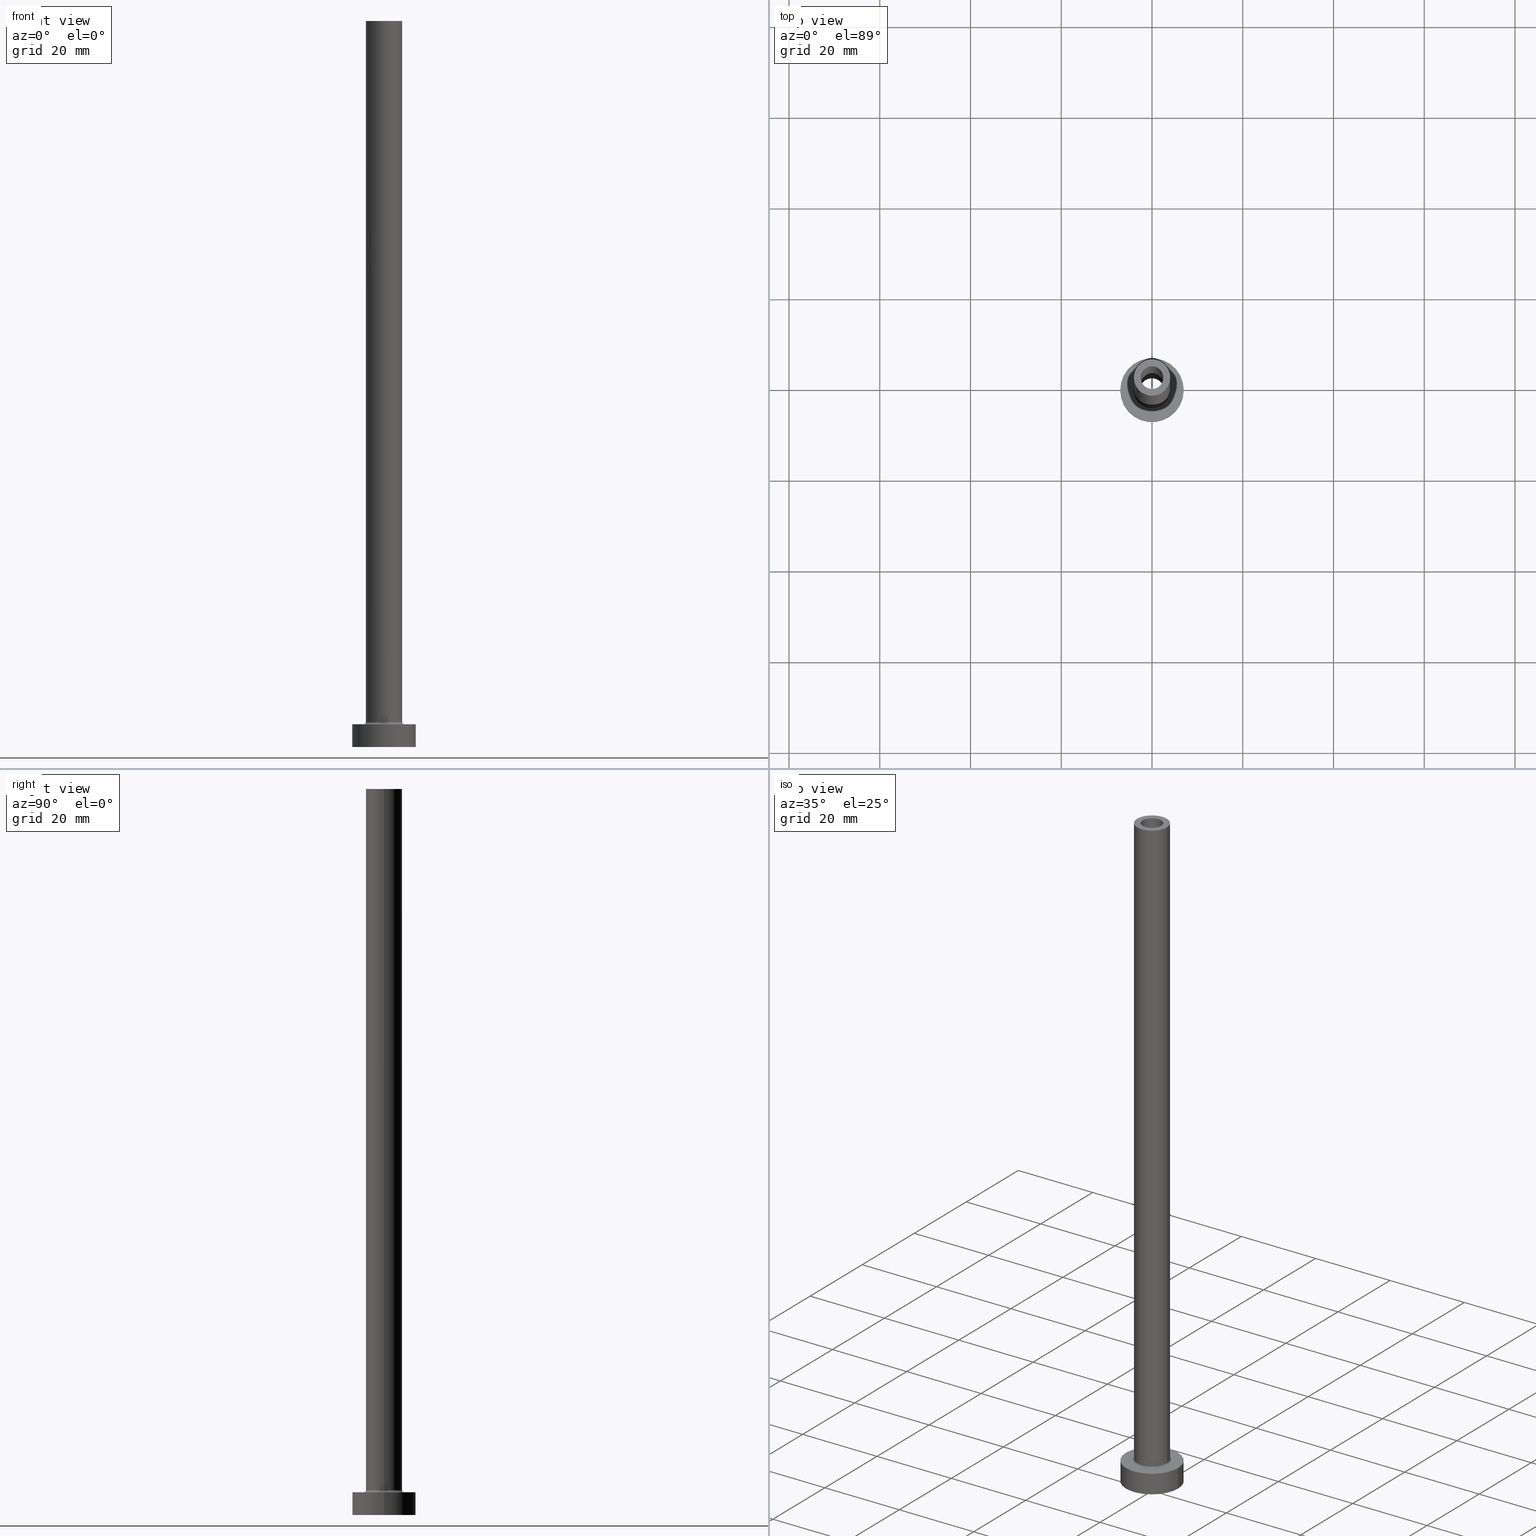
[diagram: canonical four-view strip — front | top / right | iso, engineering-drawing reading convention]
A machine part, canonical four-view strip (front | top / right | iso — engineering-drawing reading convention). The complete STEP part file that produces these views, byte-faithful:
ISO-10303-21;
HEADER;
FILE_DESCRIPTION (( 'STEP AP203' ),
    '1' );
FILE_NAME ('1b4b.STEP',
    '2023-02-13T10:13:30',
    ( '' ),
    ( '' ),
    'SwSTEP 2.0',
    'SolidWorks 2019',
    '' );
FILE_SCHEMA (( 'CONFIG_CONTROL_DESIGN' ));
ENDSEC;

DATA;
#1 = EDGE_CURVE ( 'NONE', #191, #346, #309, .T. ) ;
#2 = DIRECTION ( 'NONE',  ( 0.000000000000000000, 0.000000000000000000, -1.000000000000000000 ) ) ;
#3 = COORDINATED_UNIVERSAL_TIME_OFFSET ( 1, 0, .AHEAD. ) ;
#4 = LINE ( 'NONE', #186, #271 ) ;
#5 = AXIS2_PLACEMENT_3D ( 'NONE', #44, #324, #288 ) ;
#6 = PERSON_AND_ORGANIZATION_ROLE ( 'design_supplier' ) ;
#7 = AXIS2_PLACEMENT_3D ( 'NONE', #210, #388, #62 ) ;
#8 = CARTESIAN_POINT ( 'NONE',  ( 2.500000000000000000, 3.061616997868382648E-16, 115.0000000000000000 ) ) ;
#9 = CARTESIAN_POINT ( 'NONE',  ( 4.500000000000000888, 0.000000000000000000, 5.000000000000002665 ) ) ;
#10 = ADVANCED_FACE ( 'NONE', ( #461 ), #371, .F. ) ;
#11 = DIRECTION ( 'NONE',  ( 1.000000000000000000, 0.000000000000000000, 0.000000000000000000 ) ) ;
#12 = FACE_BOUND ( 'NONE', #390, .T. ) ;
#13 = LINE ( 'NONE', #303, #117 ) ;
#14 = ORIENTED_EDGE ( 'NONE', *, *, #304, .T. ) ;
#15 = PLANE ( 'NONE',  #19 ) ;
#16 = VERTEX_POINT ( 'NONE', #141 ) ;
#17 = DIRECTION ( 'NONE',  ( -0.000000000000000000, -0.000000000000000000, -1.000000000000000000 ) ) ;
#18 = AXIS2_PLACEMENT_3D ( 'NONE', #294, #399, #75 ) ;
#19 = AXIS2_PLACEMENT_3D ( 'NONE', #437, #232, #83 ) ;
#20 = EDGE_CURVE ( 'NONE', #95, #191, #4, .T. ) ;
#21 = CARTESIAN_POINT ( 'NONE',  ( 7.000000000000000000, 8.572527594031473190E-16, 0.000000000000000000 ) ) ;
#22 = ORIENTED_EDGE ( 'NONE', *, *, #23, .F. ) ;
#23 = EDGE_CURVE ( 'NONE', #453, #241, #130, .T. ) ;
#24 = ORIENTED_EDGE ( 'NONE', *, *, #304, .F. ) ;
#25 = ORIENTED_EDGE ( 'NONE', *, *, #1, .T. ) ;
#26 = DIRECTION ( 'NONE',  ( 0.000000000000000000, 0.000000000000000000, 1.000000000000000000 ) ) ;
#27 = ORIENTED_EDGE ( 'NONE', *, *, #403, .T. ) ;
#28 =( NAMED_UNIT ( * ) PLANE_ANGLE_UNIT ( ) SI_UNIT ( $, .RADIAN. ) );
#29 = ORIENTED_EDGE ( 'NONE', *, *, #30, .T. ) ;
#30 = EDGE_CURVE ( 'NONE', #387, #453, #227, .T. ) ;
#31 = CYLINDRICAL_SURFACE ( 'NONE', #248, 2.649999999999999911 ) ;
#32 = ORIENTED_EDGE ( 'NONE', *, *, #317, .F. ) ;
#33 = AXIS2_PLACEMENT_3D ( 'NONE', #47, #82, #264 ) ;
#34 = PRODUCT_DEFINITION_FORMATION_WITH_SPECIFIED_SOURCE ( 'LIBOVOLN�', '', #116, .NOT_KNOWN. ) ;
#35 = MECHANICAL_CONTEXT ( 'NONE', #209, 'mechanical' ) ;
#36 = FACE_OUTER_BOUND ( 'NONE', #233, .T. ) ;
#37 = PERSON_AND_ORGANIZATION ( #238, #404 ) ;
#38 = PRODUCT_RELATED_PRODUCT_CATEGORY ( 'detail', '', ( #116 ) ) ;
#39 = DIRECTION ( 'NONE',  ( 0.000000000000000000, 0.000000000000000000, -1.000000000000000000 ) ) ;
#40 = CARTESIAN_POINT ( 'NONE',  ( 0.000000000000000000, 0.000000000000000000, 115.0000000000000000 ) ) ;
#41 = VECTOR ( 'NONE', #2, 1000.000000000000000 ) ;
#42 = APPROVAL_STATUS ( 'not_yet_approved' ) ;
#43 = CIRCLE ( 'NONE', #372, 4.500000000000000888 ) ;
#44 = CARTESIAN_POINT ( 'NONE',  ( 0.000000000000000000, 0.000000000000000000, 5.000000000000000000 ) ) ;
#45 = DATE_AND_TIME ( #74, #380 ) ;
#46 = DIRECTION ( 'NONE',  ( 1.000000000000000000, 0.000000000000000000, 0.000000000000000000 ) ) ;
#47 = CARTESIAN_POINT ( 'NONE',  ( 0.000000000000000000, 0.000000000000000000, 122.4953318805774103 ) ) ;
#48 = AXIS2_PLACEMENT_3D ( 'NONE', #344, #234, #411 ) ;
#49 = CARTESIAN_POINT ( 'NONE',  ( 0.000000000000000000, 0.000000000000000000, 5.000000000000000000 ) ) ;
#50 = CC_DESIGN_APPROVAL ( #184, ( #34 ) ) ;
#51 = EDGE_CURVE ( 'NONE', #311, #95, #167, .T. ) ;
#52 = CYLINDRICAL_SURFACE ( 'NONE', #422, 4.000000000000000000 ) ;
#53 = ORIENTED_EDGE ( 'NONE', *, *, #290, .T. ) ;
#54 = CARTESIAN_POINT ( 'NONE',  ( -2.649999999999999911, 0.000000000000000000, 115.0000000000000000 ) ) ;
#55 = EDGE_CURVE ( 'NONE', #201, #203, #364, .T. ) ;
#56 = CARTESIAN_POINT ( 'NONE',  ( -2.649999999999999911, 0.000000000000000000, 0.000000000000000000 ) ) ;
#57 = ORIENTED_EDGE ( 'NONE', *, *, #121, .T. ) ;
#58 = AXIS2_PLACEMENT_3D ( 'NONE', #138, #318, #274 ) ;
#59 = LOCAL_TIME ( 11, 13, 30.00000000000000000, #287 ) ;
#60 = CARTESIAN_POINT ( 'NONE',  ( 0.000000000000000000, 0.000000000000000000, 5.000000000000000000 ) ) ;
#61 = VERTEX_POINT ( 'NONE', #114 ) ;
#62 = DIRECTION ( 'NONE',  ( 1.000000000000000000, 0.000000000000000000, 0.000000000000000000 ) ) ;
#63 = VERTEX_POINT ( 'NONE', #9 ) ;
#64 = FACE_OUTER_BOUND ( 'NONE', #243, .T. ) ;
#65 = EDGE_LOOP ( 'NONE', ( #314, #29, #132, #301 ) ) ;
#66 = ORIENTED_EDGE ( 'NONE', *, *, #245, .T. ) ;
#67 = DIRECTION ( 'NONE',  ( 0.000000000000000000, 0.000000000000000000, -1.000000000000000000 ) ) ;
#68 = ORIENTED_EDGE ( 'NONE', *, *, #378, .T. ) ;
#69 = PERSON_AND_ORGANIZATION ( #238, #404 ) ;
#70 = CARTESIAN_POINT ( 'NONE',  ( -4.000000000000000000, 0.000000000000000000, 5.500000000000005329 ) ) ;
#71 = AXIS2_PLACEMENT_3D ( 'NONE', #77, #435, #224 ) ;
#72 = COORDINATED_UNIVERSAL_TIME_OFFSET ( 1, 0, .AHEAD. ) ;
#73 = CYLINDRICAL_SURFACE ( 'NONE', #198, 2.500000000000000000 ) ;
#74 = CALENDAR_DATE ( 2023, 13, 2 ) ;
#75 = DIRECTION ( 'NONE',  ( -1.000000000000000000, 0.000000000000000000, 0.000000000000000000 ) ) ;
#76 = APPROVAL_STATUS ( 'not_yet_approved' ) ;
#77 = CARTESIAN_POINT ( 'NONE',  ( 0.000000000000000000, 0.000000000000000000, 160.0000000000000000 ) ) ;
#78 = AXIS2_PLACEMENT_3D ( 'NONE', #40, #183, #426 ) ;
#79 = APPROVAL_PERSON_ORGANIZATION ( #255, #430, #113 ) ;
#80 = CARTESIAN_POINT ( 'NONE',  ( -4.000000000000000000, 0.000000000000000000, 160.0000000000000000 ) ) ;
#81 = CC_DESIGN_PERSON_AND_ORGANIZATION_ASSIGNMENT ( #180, #291, ( #259 ) ) ;
#82 = DIRECTION ( 'NONE',  ( 0.000000000000000000, 0.000000000000000000, -1.000000000000000000 ) ) ;
#83 = DIRECTION ( 'NONE',  ( 1.000000000000000000, 0.000000000000000000, -0.000000000000000000 ) ) ;
#84 = CARTESIAN_POINT ( 'NONE',  ( 0.000000000000000000, 0.000000000000000000, 160.0000000000000000 ) ) ;
#85 = ORIENTED_EDGE ( 'NONE', *, *, #293, .T. ) ;
#86 = DIRECTION ( 'NONE',  ( 1.000000000000000000, 0.000000000000000000, 0.000000000000000000 ) ) ;
#87 = ORIENTED_EDGE ( 'NONE', *, *, #448, .F. ) ;
#88 = DIRECTION ( 'NONE',  ( 1.000000000000000000, 0.000000000000000000, 0.000000000000000000 ) ) ;
#89 = CC_DESIGN_DATE_AND_TIME_ASSIGNMENT ( #45, #398, ( #416 ) ) ;
#90 = EDGE_LOOP ( 'NONE', ( #457, #250, #171, #423 ) ) ;
#91 = CARTESIAN_POINT ( 'NONE',  ( 0.000000000000000000, 0.000000000000000000, 5.000000000000000000 ) ) ;
#92 = ORIENTED_EDGE ( 'NONE', *, *, #148, .F. ) ;
#93 = AXIS2_PLACEMENT_3D ( 'NONE', #91, #454, #206 ) ;
#94 = DIRECTION ( 'NONE',  ( 0.000000000000000000, 0.000000000000000000, -1.000000000000000000 ) ) ;
#95 = VERTEX_POINT ( 'NONE', #80 ) ;
#96 = FACE_OUTER_BOUND ( 'NONE', #90, .T. ) ;
#97 = ORIENTED_EDGE ( 'NONE', *, *, #51, .T. ) ;
#98 = APPROVAL ( #178, 'NEUR�EN�' ) ;
#99 = DIRECTION ( 'NONE',  ( -0.000000000000000000, -0.000000000000000000, -1.000000000000000000 ) ) ;
#100 = VERTEX_POINT ( 'NONE', #8 ) ;
#101 = AXIS2_PLACEMENT_3D ( 'NONE', #258, #396, #285 ) ;
#102 = AXIS2_PLACEMENT_3D ( 'NONE', #315, #351, #128 ) ;
#103 = ORIENTED_EDGE ( 'NONE', *, *, #163, .T. ) ;
#104 = DESIGN_CONTEXT ( 'detailed design', #338, 'design' ) ;
#105 = APPROVAL_DATE_TIME ( #362, #430 ) ;
#106 = EDGE_LOOP ( 'NONE', ( #455, #66, #126, #424 ) ) ;
#107 = EDGE_CURVE ( 'NONE', #316, #387, #427, .T. ) ;
#108 = APPLICATION_PROTOCOL_DEFINITION ( 'international standard', 'config_control_design', 1994, #338 ) ;
#109 = DIRECTION ( 'NONE',  ( 0.000000000000000000, 0.000000000000000000, 1.000000000000000000 ) ) ;
#110 = CIRCLE ( 'NONE', #101, 2.500000000000000000 ) ;
#111 = AXIS2_PLACEMENT_3D ( 'NONE', #202, #270, #137 ) ;
#112 = CARTESIAN_POINT ( 'NONE',  ( 0.000000000000000000, 0.000000000000000000, 5.500000000000005329 ) ) ;
#113 = APPROVAL_ROLE ( '' ) ;
#114 = CARTESIAN_POINT ( 'NONE',  ( -2.500000000000000000, 0.000000000000000000, 115.0000000000000000 ) ) ;
#115 = DIRECTION ( 'NONE',  ( 0.000000000000000000, 0.000000000000000000, 1.000000000000000000 ) ) ;
#116 = PRODUCT ( '1b4b', '1b4b', '', ( #35 ) ) ;
#117 = VECTOR ( 'NONE', #409, 1000.000000000000000 ) ;
#118 = AXIS2_PLACEMENT_3D ( 'NONE', #212, #277, #67 ) ;
#119 = CARTESIAN_POINT ( 'NONE',  ( -7.000000000000000000, 0.000000000000000000, 5.000000000000000000 ) ) ;
#120 = CARTESIAN_POINT ( 'NONE',  ( 2.500000000000000000, 3.061616997868382648E-16, 160.0000000000000000 ) ) ;
#121 = EDGE_CURVE ( 'NONE', #201, #306, #429, .T. ) ;
#122 = LINE ( 'NONE', #441, #192 ) ;
#123 = CARTESIAN_POINT ( 'NONE',  ( -7.000000000000000000, 0.000000000000000000, 0.000000000000000000 ) ) ;
#124 = EDGE_LOOP ( 'NONE', ( #172, #415, #213, #446 ) ) ;
#125 = CARTESIAN_POINT ( 'NONE',  ( 4.000000000000000000, 4.898587196589412829E-16, 160.0000000000000000 ) ) ;
#126 = ORIENTED_EDGE ( 'NONE', *, *, #440, .T. ) ;
#127 = EDGE_CURVE ( 'NONE', #191, #337, #160, .T. ) ;
#128 = DIRECTION ( 'NONE',  ( 1.000000000000000000, 0.000000000000000000, 0.000000000000000000 ) ) ;
#129 = CARTESIAN_POINT ( 'NONE',  ( 2.649999999999999911, 3.245314017740485469E-16, 115.0000000000000000 ) ) ;
#130 = CIRCLE ( 'NONE', #379, 2.649999999999999911 ) ;
#131 = EDGE_LOOP ( 'NONE', ( #211, #25, #195, #450 ) ) ;
#132 = ORIENTED_EDGE ( 'NONE', *, *, #23, .T. ) ;
#133 = ADVANCED_FACE ( 'NONE', ( #397 ), #434, .F. ) ;
#134 = DIRECTION ( 'NONE',  ( 1.000000000000000000, 0.000000000000000000, -0.000000000000000000 ) ) ;
#135 = ORIENTED_EDGE ( 'NONE', *, *, #448, .T. ) ;
#136 = ADVANCED_FACE ( 'NONE', ( #260, #36 ), #256, .T. ) ;
#137 = DIRECTION ( 'NONE',  ( -1.000000000000000000, 0.000000000000000000, 0.000000000000000000 ) ) ;
#138 = CARTESIAN_POINT ( 'NONE',  ( -4.500000000000000888, 5.510910596163089556E-16, 5.500000000000005329 ) ) ;
#139 = AXIS2_PLACEMENT_3D ( 'NONE', #438, #269, #407 ) ;
#140 = ORIENTED_EDGE ( 'NONE', *, *, #444, .T. ) ;
#141 = CARTESIAN_POINT ( 'NONE',  ( -2.500000000000000000, 0.000000000000000000, 160.0000000000000000 ) ) ;
#142 = APPROVAL_ROLE ( '' ) ;
#143 = DIRECTION ( 'NONE',  ( 1.000000000000000000, 0.000000000000000000, 0.000000000000000000 ) ) ;
#144 = AXIS2_PLACEMENT_3D ( 'NONE', #359, #292, #357 ) ;
#145 = CC_DESIGN_SECURITY_CLASSIFICATION ( #416, ( #34 ) ) ;
#146 = DATE_AND_TIME ( #360, #59 ) ;
#147 = DIRECTION ( 'NONE',  ( 0.000000000000000000, 0.000000000000000000, 1.000000000000000000 ) ) ;
#148 = EDGE_CURVE ( 'NONE', #61, #100, #110, .T. ) ;
#149 = DATE_AND_TIME ( #400, #343 ) ;
#150 = DIRECTION ( 'NONE',  ( 1.000000000000000000, 0.000000000000000000, 0.000000000000000000 ) ) ;
#151 = ADVANCED_BREP_SHAPE_REPRESENTATION ( '1b4b', ( #217, #281 ), #162 ) ;
#152 = EDGE_CURVE ( 'NONE', #241, #453, #231, .T. ) ;
#153 = CARTESIAN_POINT ( 'NONE',  ( 0.000000000000000000, 0.000000000000000000, 115.0000000000000000 ) ) ;
#154 = CIRCLE ( 'NONE', #118, 0.5000000000000004441 ) ;
#155 = CARTESIAN_POINT ( 'NONE',  ( -4.500000000000000888, 5.510910596163088569E-16, 5.000000000000002665 ) ) ;
#156 = CARTESIAN_POINT ( 'NONE',  ( 0.000000000000000000, 0.000000000000000000, 160.0000000000000000 ) ) ;
#157 = ORIENTED_EDGE ( 'NONE', *, *, #152, .F. ) ;
#158 = FACE_OUTER_BOUND ( 'NONE', #65, .T. ) ;
#159 = ORIENTED_EDGE ( 'NONE', *, *, #283, .T. ) ;
#160 = CIRCLE ( 'NONE', #144, 4.000000000000000000 ) ;
#161 = DIRECTION ( 'NONE',  ( -0.000000000000000000, -0.000000000000000000, -1.000000000000000000 ) ) ;
#162 =( GEOMETRIC_REPRESENTATION_CONTEXT ( 3 ) GLOBAL_UNCERTAINTY_ASSIGNED_CONTEXT ( ( #215 ) ) GLOBAL_UNIT_ASSIGNED_CONTEXT ( ( #313, #28, #273 ) ) REPRESENTATION_CONTEXT ( 'NONE', 'WORKASPACE' ) );
#163 = EDGE_CURVE ( 'NONE', #100, #61, #279, .T. ) ;
#164 = CARTESIAN_POINT ( 'NONE',  ( -7.000000000000000000, 0.000000000000000000, 5.000000000000000000 ) ) ;
#165 = ORIENTED_EDGE ( 'NONE', *, *, #383, .F. ) ;
#166 = DIRECTION ( 'NONE',  ( 1.000000000000000000, 0.000000000000000000, 0.000000000000000000 ) ) ;
#167 = CIRCLE ( 'NONE', #71, 4.000000000000000000 ) ;
#168 = ORIENTED_EDGE ( 'NONE', *, *, #148, .T. ) ;
#169 = AXIS2_PLACEMENT_3D ( 'NONE', #456, #26, #134 ) ;
#170 = DIRECTION ( 'NONE',  ( -1.000000000000000000, 0.000000000000000000, 0.000000000000000000 ) ) ;
#171 = ORIENTED_EDGE ( 'NONE', *, *, #20, .T. ) ;
#172 = ORIENTED_EDGE ( 'NONE', *, *, #121, .F. ) ;
#173 = CC_DESIGN_PERSON_AND_ORGANIZATION_ASSIGNMENT ( #37, #358, ( #34 ) ) ;
#174 = CARTESIAN_POINT ( 'NONE',  ( 0.000000000000000000, 0.000000000000000000, 122.4953318805774103 ) ) ;
#175 = EDGE_LOOP ( 'NONE', ( #340, #354 ) ) ;
#176 = AXIS2_PLACEMENT_3D ( 'NONE', #401, #179, #432 ) ;
#177 = CC_DESIGN_APPROVAL ( #98, ( #416 ) ) ;
#178 = APPROVAL_STATUS ( 'not_yet_approved' ) ;
#179 = DIRECTION ( 'NONE',  ( 0.000000000000000000, 0.000000000000000000, 1.000000000000000000 ) ) ;
#180 = PERSON_AND_ORGANIZATION ( #238, #404 ) ;
#181 = DIRECTION ( 'NONE',  ( -1.000000000000000000, 0.000000000000000000, 0.000000000000000000 ) ) ;
#182 = PERSON_AND_ORGANIZATION ( #238, #404 ) ;
#183 = DIRECTION ( 'NONE',  ( 0.000000000000000000, 0.000000000000000000, 1.000000000000000000 ) ) ;
#184 = APPROVAL ( #42, 'NEUR�EN�' ) ;
#185 = COORDINATED_UNIVERSAL_TIME_OFFSET ( 1, 0, .AHEAD. ) ;
#186 = CARTESIAN_POINT ( 'NONE',  ( -4.000000000000000000, 0.000000000000000000, 160.0000000000000000 ) ) ;
#187 = EDGE_CURVE ( 'NONE', #95, #311, #394, .T. ) ;
#188 = DIRECTION ( 'NONE',  ( 1.000000000000000000, 0.000000000000000000, 0.000000000000000000 ) ) ;
#189 = EDGE_CURVE ( 'NONE', #387, #316, #410, .T. ) ;
#190 = CARTESIAN_POINT ( 'NONE',  ( 4.000000000000000000, 4.898587196589412829E-16, 5.500000000000005329 ) ) ;
#191 = VERTEX_POINT ( 'NONE', #70 ) ;
#192 = VECTOR ( 'NONE', #263, 1000.000000000000000 ) ;
#193 = DIRECTION ( 'NONE',  ( 1.000000000000000000, 0.000000000000000000, 0.000000000000000000 ) ) ;
#194 = DIRECTION ( 'NONE',  ( -0.000000000000000000, -0.000000000000000000, -1.000000000000000000 ) ) ;
#195 = ORIENTED_EDGE ( 'NONE', *, *, #367, .F. ) ;
#196 = LINE ( 'NONE', #164, #402 ) ;
#197 = ADVANCED_FACE ( 'NONE', ( #253 ), #73, .F. ) ;
#198 = AXIS2_PLACEMENT_3D ( 'NONE', #220, #39, #181 ) ;
#199 = CARTESIAN_POINT ( 'NONE',  ( 0.000000000000000000, 0.000000000000000000, 0.000000000000000000 ) ) ;
#200 = CIRCLE ( 'NONE', #302, 7.000000000000000000 ) ;
#201 = VERTEX_POINT ( 'NONE', #336 ) ;
#202 = CARTESIAN_POINT ( 'NONE',  ( 0.000000000000000000, 0.000000000000000000, 160.0000000000000000 ) ) ;
#203 = VERTEX_POINT ( 'NONE', #119 ) ;
#204 = FACE_OUTER_BOUND ( 'NONE', #124, .T. ) ;
#205 = VERTEX_POINT ( 'NONE', #123 ) ;
#206 = DIRECTION ( 'NONE',  ( 1.000000000000000000, 0.000000000000000000, 0.000000000000000000 ) ) ;
#207 = ORIENTED_EDGE ( 'NONE', *, *, #30, .F. ) ;
#208 = VECTOR ( 'NONE', #94, 1000.000000000000000 ) ;
#209 = APPLICATION_CONTEXT ( 'configuration controlled 3d designs of mechanical parts and assemblies' ) ;
#210 = CARTESIAN_POINT ( 'NONE',  ( 0.000000000000000000, 0.000000000000000000, 5.500000000000005329 ) ) ;
#211 = ORIENTED_EDGE ( 'NONE', *, *, #127, .F. ) ;
#212 = CARTESIAN_POINT ( 'NONE',  ( 4.500000000000000888, 0.000000000000000000, 5.500000000000005329 ) ) ;
#213 = ORIENTED_EDGE ( 'NONE', *, *, #221, .T. ) ;
#214 = ADVANCED_FACE ( 'NONE', ( #158 ), #305, .F. ) ;
#215 = UNCERTAINTY_MEASURE_WITH_UNIT (LENGTH_MEASURE( 1.000000000000000082E-05 ), #313, 'distance_accuracy_value', 'NONE');
#216 = SHAPE_DEFINITION_REPRESENTATION ( #355, #151 ) ;
#217 = MANIFOLD_SOLID_BREP ( 'Odebrat vysunut�m4', #246 ) ;
#218 = CARTESIAN_POINT ( 'NONE',  ( 0.000000000000000000, 0.000000000000000000, 0.000000000000000000 ) ) ;
#219 = CALENDAR_DATE ( 2023, 13, 2 ) ;
#220 = CARTESIAN_POINT ( 'NONE',  ( 0.000000000000000000, 0.000000000000000000, 160.0000000000000000 ) ) ;
#221 = EDGE_CURVE ( 'NONE', #203, #205, #196, .T. ) ;
#222 = DIRECTION ( 'NONE',  ( 0.000000000000000000, 0.000000000000000000, 1.000000000000000000 ) ) ;
#223 = COORDINATED_UNIVERSAL_TIME_OFFSET ( 1, 0, .AHEAD. ) ;
#224 = DIRECTION ( 'NONE',  ( 1.000000000000000000, 0.000000000000000000, 0.000000000000000000 ) ) ;
#225 = AXIS2_PLACEMENT_3D ( 'NONE', #289, #115, #150 ) ;
#226 = AXIS2_PLACEMENT_3D ( 'NONE', #413, #236, #86 ) ;
#227 = LINE ( 'NONE', #363, #41 ) ;
#228 = LINE ( 'NONE', #120, #458 ) ;
#229 = DIRECTION ( 'NONE',  ( 0.000000000000000000, 0.000000000000000000, -1.000000000000000000 ) ) ;
#230 = ORIENTED_EDGE ( 'NONE', *, *, #163, .F. ) ;
#231 = CIRCLE ( 'NONE', #333, 2.649999999999999911 ) ;
#232 = DIRECTION ( 'NONE',  ( 0.000000000000000000, 0.000000000000000000, 1.000000000000000000 ) ) ;
#233 = EDGE_LOOP ( 'NONE', ( #265, #97 ) ) ;
#234 = DIRECTION ( 'NONE',  ( 0.000000000000000000, 0.000000000000000000, 1.000000000000000000 ) ) ;
#235 = EDGE_LOOP ( 'NONE', ( #377, #85, #53, #230 ) ) ;
#236 = DIRECTION ( 'NONE',  ( 0.000000000000000000, 0.000000000000000000, 1.000000000000000000 ) ) ;
#237 = ORIENTED_EDGE ( 'NONE', *, *, #383, .T. ) ;
#238 = PERSON ( 'NEUR�EN�', 'NEUR�EN�', 'NEUR�EN�', ('NEUR�EN�'), ('NEUR�EN�'), ('NEUR�EN�') ) ;
#239 = AXIS2_PLACEMENT_3D ( 'NONE', #326, #147, #188 ) ;
#240 = CYLINDRICAL_SURFACE ( 'NONE', #111, 4.000000000000000000 ) ;
#241 = VERTEX_POINT ( 'NONE', #56 ) ;
#242 = DIRECTION ( 'NONE',  ( 1.000000000000000000, 0.000000000000000000, 0.000000000000000000 ) ) ;
#243 = EDGE_LOOP ( 'NONE', ( #207, #374, #68, #439 ) ) ;
#244 = DIRECTION ( 'NONE',  ( -1.000000000000000000, 0.000000000000000000, 0.000000000000000000 ) ) ;
#245 = EDGE_CURVE ( 'NONE', #311, #337, #122, .T. ) ;
#246 = CLOSED_SHELL ( 'NONE', ( #133, #214, #10, #369, #286, #389, #349, #386, #459, #136, #299, #412, #312, #197 ) ) ;
#247 = EDGE_LOOP ( 'NONE', ( #32, #24 ) ) ;
#248 = AXIS2_PLACEMENT_3D ( 'NONE', #174, #419, #170 ) ;
#249 = CARTESIAN_POINT ( 'NONE',  ( 0.000000000000000000, 0.000000000000000000, 0.000000000000000000 ) ) ;
#250 = ORIENTED_EDGE ( 'NONE', *, *, #187, .F. ) ;
#251 = DATE_AND_TIME ( #282, #262 ) ;
#252 = DIRECTION ( 'NONE',  ( -0.000000000000000000, -0.000000000000000000, -1.000000000000000000 ) ) ;
#253 = FACE_OUTER_BOUND ( 'NONE', #235, .T. ) ;
#254 = TOROIDAL_SURFACE ( 'NONE', #48, 4.500000000000000888, 0.5000000000000000000 ) ;
#255 = PERSON_AND_ORGANIZATION ( #238, #404 ) ;
#256 = PLANE ( 'NONE',  #176 ) ;
#257 = APPROVAL_DATE_TIME ( #251, #184 ) ;
#258 = CARTESIAN_POINT ( 'NONE',  ( 0.000000000000000000, 0.000000000000000000, 115.0000000000000000 ) ) ;
#259 = PRODUCT_DEFINITION ( 'NEZN�M�', '', #34, #104 ) ;
#260 = FACE_BOUND ( 'NONE', #350, .T. ) ;
#261 = AXIS2_PLACEMENT_3D ( 'NONE', #112, #222, #143 ) ;
#262 = LOCAL_TIME ( 11, 13, 30.00000000000000000, #185 ) ;
#263 = DIRECTION ( 'NONE',  ( -0.000000000000000000, -0.000000000000000000, -1.000000000000000000 ) ) ;
#264 = DIRECTION ( 'NONE',  ( -1.000000000000000000, 0.000000000000000000, 0.000000000000000000 ) ) ;
#265 = ORIENTED_EDGE ( 'NONE', *, *, #187, .T. ) ;
#266 = FACE_OUTER_BOUND ( 'NONE', #106, .T. ) ;
#267 = CC_DESIGN_DATE_AND_TIME_ASSIGNMENT ( #149, #392, ( #259 ) ) ;
#268 = AXIS2_PLACEMENT_3D ( 'NONE', #60, #99, #244 ) ;
#269 = DIRECTION ( 'NONE',  ( 0.000000000000000000, 0.000000000000000000, 1.000000000000000000 ) ) ;
#270 = DIRECTION ( 'NONE',  ( -0.000000000000000000, -0.000000000000000000, -1.000000000000000000 ) ) ;
#271 = VECTOR ( 'NONE', #329, 1000.000000000000000 ) ;
#272 = CIRCLE ( 'NONE', #226, 7.000000000000000000 ) ;
#273 =( NAMED_UNIT ( * ) SI_UNIT ( $, .STERADIAN. ) SOLID_ANGLE_UNIT ( ) );
#274 = DIRECTION ( 'NONE',  ( -1.000000000000000000, 1.224646799147351482E-16, 0.000000000000000000 ) ) ;
#275 = CARTESIAN_POINT ( 'NONE',  ( 2.649999999999999911, 3.245314017740485469E-16, 0.000000000000000000 ) ) ;
#276 = ORIENTED_EDGE ( 'NONE', *, *, #55, .F. ) ;
#277 = DIRECTION ( 'NONE',  ( 0.000000000000000000, -1.000000000000000000, 0.000000000000000000 ) ) ;
#278 = ORIENTED_EDGE ( 'NONE', *, *, #293, .F. ) ;
#279 = CIRCLE ( 'NONE', #78, 2.500000000000000000 ) ;
#280 = EDGE_LOOP ( 'NONE', ( #135, #159, #92, #442 ) ) ;
#281 = AXIS2_PLACEMENT_3D ( 'NONE', #249, #452, #242 ) ;
#282 = CALENDAR_DATE ( 2023, 13, 2 ) ;
#283 = EDGE_CURVE ( 'NONE', #408, #100, #228, .T. ) ;
#284 = EDGE_LOOP ( 'NONE', ( #352, #382, #27, #165 ) ) ;
#285 = DIRECTION ( 'NONE',  ( 1.000000000000000000, 0.000000000000000000, 0.000000000000000000 ) ) ;
#286 = ADVANCED_FACE ( 'NONE', ( #298 ), #300, .T. ) ;
#287 = COORDINATED_UNIVERSAL_TIME_OFFSET ( 1, 0, .AHEAD. ) ;
#288 = DIRECTION ( 'NONE',  ( 1.000000000000000000, 0.000000000000000000, 0.000000000000000000 ) ) ;
#289 = CARTESIAN_POINT ( 'NONE',  ( 0.000000000000000000, 0.000000000000000000, 115.0000000000000000 ) ) ;
#290 = EDGE_CURVE ( 'NONE', #16, #61, #13, .T. ) ;
#291 = PERSON_AND_ORGANIZATION_ROLE ( 'creator' ) ;
#292 = DIRECTION ( 'NONE',  ( 0.000000000000000000, 0.000000000000000000, 1.000000000000000000 ) ) ;
#293 = EDGE_CURVE ( 'NONE', #408, #16, #356, .T. ) ;
#294 = CARTESIAN_POINT ( 'NONE',  ( 0.000000000000000000, 0.000000000000000000, 160.0000000000000000 ) ) ;
#295 = AXIS2_PLACEMENT_3D ( 'NONE', #445, #17, #405 ) ;
#296 = CIRCLE ( 'NONE', #365, 7.000000000000000000 ) ;
#297 = FACE_OUTER_BOUND ( 'NONE', #418, .T. ) ;
#298 = FACE_OUTER_BOUND ( 'NONE', #421, .T. ) ;
#299 = ADVANCED_FACE ( 'NONE', ( #370 ), #254, .F. ) ;
#300 = CYLINDRICAL_SURFACE ( 'NONE', #295, 7.000000000000000000 ) ;
#301 = ORIENTED_EDGE ( 'NONE', *, *, #378, .F. ) ;
#302 = AXIS2_PLACEMENT_3D ( 'NONE', #199, #331, #88 ) ;
#303 = CARTESIAN_POINT ( 'NONE',  ( -2.500000000000000000, 0.000000000000000000, 160.0000000000000000 ) ) ;
#304 = EDGE_CURVE ( 'NONE', #306, #205, #200, .T. ) ;
#305 = CYLINDRICAL_SURFACE ( 'NONE', #33, 2.649999999999999911 ) ;
#306 = VERTEX_POINT ( 'NONE', #21 ) ;
#307 = CARTESIAN_POINT ( 'NONE',  ( 2.500000000000000000, 3.061616997868382648E-16, 160.0000000000000000 ) ) ;
#308 = ORIENTED_EDGE ( 'NONE', *, *, #367, .T. ) ;
#309 = CIRCLE ( 'NONE', #58, 0.5000000000000004441 ) ;
#310 = FACE_OUTER_BOUND ( 'NONE', #247, .T. ) ;
#311 = VERTEX_POINT ( 'NONE', #125 ) ;
#312 = ADVANCED_FACE ( 'NONE', ( #12, #368 ), #373, .F. ) ;
#313 =( LENGTH_UNIT ( ) NAMED_UNIT ( * ) SI_UNIT ( .MILLI., .METRE. ) );
#314 = ORIENTED_EDGE ( 'NONE', *, *, #107, .T. ) ;
#315 = CARTESIAN_POINT ( 'NONE',  ( 0.000000000000000000, 0.000000000000000000, 160.0000000000000000 ) ) ;
#316 = VERTEX_POINT ( 'NONE', #54 ) ;
#317 = EDGE_CURVE ( 'NONE', #205, #306, #272, .T. ) ;
#318 = DIRECTION ( 'NONE',  ( 1.224646799147353207E-16, 1.000000000000000000, -0.000000000000000000 ) ) ;
#319 = CIRCLE ( 'NONE', #93, 4.500000000000000888 ) ;
#320 = PERSON_AND_ORGANIZATION ( #238, #404 ) ;
#321 = CC_DESIGN_PERSON_AND_ORGANIZATION_ASSIGNMENT ( #69, #6, ( #34 ) ) ;
#322 = DIRECTION ( 'NONE',  ( -0.000000000000000000, -0.000000000000000000, -1.000000000000000000 ) ) ;
#323 = SECURITY_CLASSIFICATION_LEVEL ( 'unclassified' ) ;
#324 = DIRECTION ( 'NONE',  ( 0.000000000000000000, 0.000000000000000000, 1.000000000000000000 ) ) ;
#325 = PERSON_AND_ORGANIZATION ( #238, #404 ) ;
#326 = CARTESIAN_POINT ( 'NONE',  ( 0.000000000000000000, 0.000000000000000000, 160.0000000000000000 ) ) ;
#327 = CIRCLE ( 'NONE', #102, 2.500000000000000000 ) ;
#328 = APPROVAL_DATE_TIME ( #146, #98 ) ;
#329 = DIRECTION ( 'NONE',  ( -0.000000000000000000, -0.000000000000000000, -1.000000000000000000 ) ) ;
#330 = CARTESIAN_POINT ( 'NONE',  ( 7.000000000000000000, 8.572527594031473190E-16, 5.000000000000000000 ) ) ;
#331 = DIRECTION ( 'NONE',  ( 0.000000000000000000, 0.000000000000000000, 1.000000000000000000 ) ) ;
#332 = ORIENTED_EDGE ( 'NONE', *, *, #55, .T. ) ;
#333 = AXIS2_PLACEMENT_3D ( 'NONE', #366, #252, #46 ) ;
#334 = CC_DESIGN_APPROVAL ( #430, ( #259 ) ) ;
#335 = CC_DESIGN_PERSON_AND_ORGANIZATION_ASSIGNMENT ( #431, #433, ( #416 ) ) ;
#336 = CARTESIAN_POINT ( 'NONE',  ( 7.000000000000000000, 8.572527594031473190E-16, 5.000000000000000000 ) ) ;
#337 = VERTEX_POINT ( 'NONE', #190 ) ;
#338 = APPLICATION_CONTEXT ( 'configuration controlled 3d designs of mechanical parts and assemblies' ) ;
#339 = DIRECTION ( 'NONE',  ( -0.000000000000000000, -0.000000000000000000, -1.000000000000000000 ) ) ;
#340 = ORIENTED_EDGE ( 'NONE', *, *, #107, .F. ) ;
#341 = DIRECTION ( 'NONE',  ( 1.000000000000000000, 0.000000000000000000, 0.000000000000000000 ) ) ;
#342 = AXIS2_PLACEMENT_3D ( 'NONE', #153, #109, #393 ) ;
#343 = LOCAL_TIME ( 11, 13, 30.00000000000000000, #223 ) ;
#344 = CARTESIAN_POINT ( 'NONE',  ( 0.000000000000000000, 0.000000000000000000, 5.500000000000005329 ) ) ;
#345 = ORIENTED_EDGE ( 'NONE', *, *, #221, .F. ) ;
#346 = VERTEX_POINT ( 'NONE', #155 ) ;
#347 = VECTOR ( 'NONE', #361, 1000.000000000000000 ) ;
#348 = DIRECTION ( 'NONE',  ( -1.000000000000000000, 0.000000000000000000, 0.000000000000000000 ) ) ;
#349 = ADVANCED_FACE ( 'NONE', ( #376, #297 ), #15, .T. ) ;
#350 = EDGE_LOOP ( 'NONE', ( #87, #278 ) ) ;
#351 = DIRECTION ( 'NONE',  ( 0.000000000000000000, 0.000000000000000000, 1.000000000000000000 ) ) ;
#352 = ORIENTED_EDGE ( 'NONE', *, *, #1, .F. ) ;
#353 = FACE_BOUND ( 'NONE', #385, .T. ) ;
#354 = ORIENTED_EDGE ( 'NONE', *, *, #189, .F. ) ;
#355 = PRODUCT_DEFINITION_SHAPE ( 'NONE', 'NONE',  #259 ) ;
#356 = CIRCLE ( 'NONE', #451, 2.500000000000000000 ) ;
#357 = DIRECTION ( 'NONE',  ( 1.000000000000000000, 0.000000000000000000, 0.000000000000000000 ) ) ;
#358 = PERSON_AND_ORGANIZATION_ROLE ( 'creator' ) ;
#359 = CARTESIAN_POINT ( 'NONE',  ( 0.000000000000000000, 0.000000000000000000, 5.500000000000005329 ) ) ;
#360 = CALENDAR_DATE ( 2023, 13, 2 ) ;
#361 = DIRECTION ( 'NONE',  ( -0.000000000000000000, -0.000000000000000000, -1.000000000000000000 ) ) ;
#362 = DATE_AND_TIME ( #219, #443 ) ;
#363 = CARTESIAN_POINT ( 'NONE',  ( 2.649999999999999911, 3.245314017740485469E-16, 122.4953318805774103 ) ) ;
#364 = CIRCLE ( 'NONE', #5, 7.000000000000000000 ) ;
#365 = AXIS2_PLACEMENT_3D ( 'NONE', #384, #447, #166 ) ;
#366 = CARTESIAN_POINT ( 'NONE',  ( 0.000000000000000000, 0.000000000000000000, 0.000000000000000000 ) ) ;
#367 = EDGE_CURVE ( 'NONE', #63, #346, #43, .T. ) ;
#368 = FACE_OUTER_BOUND ( 'NONE', #175, .T. ) ;
#369 = ADVANCED_FACE ( 'NONE', ( #266 ), #52, .T. ) ;
#370 = FACE_OUTER_BOUND ( 'NONE', #284, .T. ) ;
#371 = TOROIDAL_SURFACE ( 'NONE', #261, 4.500000000000000888, 0.5000000000000000000 ) ;
#372 = AXIS2_PLACEMENT_3D ( 'NONE', #49, #339, #193 ) ;
#373 = PLANE ( 'NONE',  #139 ) ;
#374 = ORIENTED_EDGE ( 'NONE', *, *, #189, .T. ) ;
#375 = DIRECTION ( 'NONE',  ( 0.000000000000000000, 0.000000000000000000, 1.000000000000000000 ) ) ;
#376 = FACE_BOUND ( 'NONE', #391, .T. ) ;
#377 = ORIENTED_EDGE ( 'NONE', *, *, #283, .F. ) ;
#378 = EDGE_CURVE ( 'NONE', #316, #241, #414, .T. ) ;
#379 = AXIS2_PLACEMENT_3D ( 'NONE', #218, #322, #11 ) ;
#380 = LOCAL_TIME ( 11, 13, 30.00000000000000000, #3 ) ;
#381 = CYLINDRICAL_SURFACE ( 'NONE', #268, 7.000000000000000000 ) ;
#382 = ORIENTED_EDGE ( 'NONE', *, *, #440, .F. ) ;
#383 = EDGE_CURVE ( 'NONE', #346, #63, #319, .T. ) ;
#384 = CARTESIAN_POINT ( 'NONE',  ( 0.000000000000000000, 0.000000000000000000, 5.000000000000000000 ) ) ;
#385 = EDGE_LOOP ( 'NONE', ( #157, #22 ) ) ;
#386 = ADVANCED_FACE ( 'NONE', ( #353, #310 ), #420, .F. ) ;
#387 = VERTEX_POINT ( 'NONE', #129 ) ;
#388 = DIRECTION ( 'NONE',  ( 0.000000000000000000, 0.000000000000000000, 1.000000000000000000 ) ) ;
#389 = ADVANCED_FACE ( 'NONE', ( #204 ), #381, .T. ) ;
#390 = EDGE_LOOP ( 'NONE', ( #168, #103 ) ) ;
#391 = EDGE_LOOP ( 'NONE', ( #308, #237 ) ) ;
#392 = DATE_TIME_ROLE ( 'creation_date' ) ;
#393 = DIRECTION ( 'NONE',  ( 1.000000000000000000, 0.000000000000000000, 0.000000000000000000 ) ) ;
#394 = CIRCLE ( 'NONE', #239, 4.000000000000000000 ) ;
#395 = PERSON_AND_ORGANIZATION_ROLE ( 'design_owner' ) ;
#396 = DIRECTION ( 'NONE',  ( 0.000000000000000000, 0.000000000000000000, 1.000000000000000000 ) ) ;
#397 = FACE_OUTER_BOUND ( 'NONE', #280, .T. ) ;
#398 = DATE_TIME_ROLE ( 'classification_date' ) ;
#399 = DIRECTION ( 'NONE',  ( 0.000000000000000000, 0.000000000000000000, -1.000000000000000000 ) ) ;
#400 = CALENDAR_DATE ( 2023, 13, 2 ) ;
#401 = CARTESIAN_POINT ( 'NONE',  ( 0.000000000000000000, 0.000000000000000000, 160.0000000000000000 ) ) ;
#402 = VECTOR ( 'NONE', #161, 1000.000000000000000 ) ;
#403 = EDGE_CURVE ( 'NONE', #337, #63, #154, .T. ) ;
#404 = ORGANIZATION ( 'NEUR�EN�', 'NEUR�EN�', '' ) ;
#405 = DIRECTION ( 'NONE',  ( -1.000000000000000000, 0.000000000000000000, 0.000000000000000000 ) ) ;
#406 = CC_DESIGN_PERSON_AND_ORGANIZATION_ASSIGNMENT ( #182, #395, ( #116 ) ) ;
#407 = DIRECTION ( 'NONE',  ( 1.000000000000000000, 0.000000000000000000, -0.000000000000000000 ) ) ;
#408 = VERTEX_POINT ( 'NONE', #307 ) ;
#409 = DIRECTION ( 'NONE',  ( 0.000000000000000000, 0.000000000000000000, -1.000000000000000000 ) ) ;
#410 = CIRCLE ( 'NONE', #342, 2.649999999999999911 ) ;
#411 = DIRECTION ( 'NONE',  ( 1.000000000000000000, 0.000000000000000000, 0.000000000000000000 ) ) ;
#412 = ADVANCED_FACE ( 'NONE', ( #64 ), #31, .F. ) ;
#413 = CARTESIAN_POINT ( 'NONE',  ( 0.000000000000000000, 0.000000000000000000, 0.000000000000000000 ) ) ;
#414 = LINE ( 'NONE', #449, #208 ) ;
#415 = ORIENTED_EDGE ( 'NONE', *, *, #444, .F. ) ;
#416 = SECURITY_CLASSIFICATION ( '', '', #323 ) ;
#417 = APPLICATION_PROTOCOL_DEFINITION ( 'international standard', 'config_control_design', 1994, #209 ) ;
#418 = EDGE_LOOP ( 'NONE', ( #140, #332 ) ) ;
#419 = DIRECTION ( 'NONE',  ( 0.000000000000000000, 0.000000000000000000, -1.000000000000000000 ) ) ;
#420 = PLANE ( 'NONE',  #169 ) ;
#421 = EDGE_LOOP ( 'NONE', ( #276, #57, #14, #345 ) ) ;
#422 = AXIS2_PLACEMENT_3D ( 'NONE', #84, #194, #348 ) ;
#423 = ORIENTED_EDGE ( 'NONE', *, *, #127, .T. ) ;
#424 = ORIENTED_EDGE ( 'NONE', *, *, #20, .F. ) ;
#425 = APPROVAL_ROLE ( '' ) ;
#426 = DIRECTION ( 'NONE',  ( 1.000000000000000000, 0.000000000000000000, 0.000000000000000000 ) ) ;
#427 = CIRCLE ( 'NONE', #225, 2.649999999999999911 ) ;
#428 = APPROVAL_PERSON_ORGANIZATION ( #325, #98, #142 ) ;
#429 = LINE ( 'NONE', #330, #347 ) ;
#430 = APPROVAL ( #76, 'NEUR�EN�' ) ;
#431 = PERSON_AND_ORGANIZATION ( #238, #404 ) ;
#432 = DIRECTION ( 'NONE',  ( 1.000000000000000000, 0.000000000000000000, -0.000000000000000000 ) ) ;
#433 = PERSON_AND_ORGANIZATION_ROLE ( 'classification_officer' ) ;
#434 = CYLINDRICAL_SURFACE ( 'NONE', #18, 2.500000000000000000 ) ;
#435 = DIRECTION ( 'NONE',  ( 0.000000000000000000, 0.000000000000000000, 1.000000000000000000 ) ) ;
#436 = CIRCLE ( 'NONE', #7, 4.000000000000000000 ) ;
#437 = CARTESIAN_POINT ( 'NONE',  ( 0.000000000000000000, 0.000000000000000000, 5.000000000000000000 ) ) ;
#438 = CARTESIAN_POINT ( 'NONE',  ( 0.000000000000000000, 0.000000000000000000, 115.0000000000000000 ) ) ;
#439 = ORIENTED_EDGE ( 'NONE', *, *, #152, .T. ) ;
#440 = EDGE_CURVE ( 'NONE', #337, #191, #436, .T. ) ;
#441 = CARTESIAN_POINT ( 'NONE',  ( 4.000000000000000000, 4.898587196589412829E-16, 160.0000000000000000 ) ) ;
#442 = ORIENTED_EDGE ( 'NONE', *, *, #290, .F. ) ;
#443 = LOCAL_TIME ( 11, 13, 30.00000000000000000, #72 ) ;
#444 = EDGE_CURVE ( 'NONE', #203, #201, #296, .T. ) ;
#445 = CARTESIAN_POINT ( 'NONE',  ( 0.000000000000000000, 0.000000000000000000, 5.000000000000000000 ) ) ;
#446 = ORIENTED_EDGE ( 'NONE', *, *, #317, .T. ) ;
#447 = DIRECTION ( 'NONE',  ( 0.000000000000000000, 0.000000000000000000, 1.000000000000000000 ) ) ;
#448 = EDGE_CURVE ( 'NONE', #16, #408, #327, .T. ) ;
#449 = CARTESIAN_POINT ( 'NONE',  ( -2.649999999999999911, 0.000000000000000000, 122.4953318805774103 ) ) ;
#450 = ORIENTED_EDGE ( 'NONE', *, *, #403, .F. ) ;
#451 = AXIS2_PLACEMENT_3D ( 'NONE', #156, #375, #341 ) ;
#452 = DIRECTION ( 'NONE',  ( 0.000000000000000000, 0.000000000000000000, 1.000000000000000000 ) ) ;
#453 = VERTEX_POINT ( 'NONE', #275 ) ;
#454 = DIRECTION ( 'NONE',  ( -0.000000000000000000, -0.000000000000000000, -1.000000000000000000 ) ) ;
#455 = ORIENTED_EDGE ( 'NONE', *, *, #51, .F. ) ;
#456 = CARTESIAN_POINT ( 'NONE',  ( 0.000000000000000000, 0.000000000000000000, 0.000000000000000000 ) ) ;
#457 = ORIENTED_EDGE ( 'NONE', *, *, #245, .F. ) ;
#458 = VECTOR ( 'NONE', #229, 1000.000000000000000 ) ;
#459 = ADVANCED_FACE ( 'NONE', ( #96 ), #240, .T. ) ;
#460 = APPROVAL_PERSON_ORGANIZATION ( #320, #184, #425 ) ;
#461 = FACE_OUTER_BOUND ( 'NONE', #131, .T. ) ;
ENDSEC;
END-ISO-10303-21;
